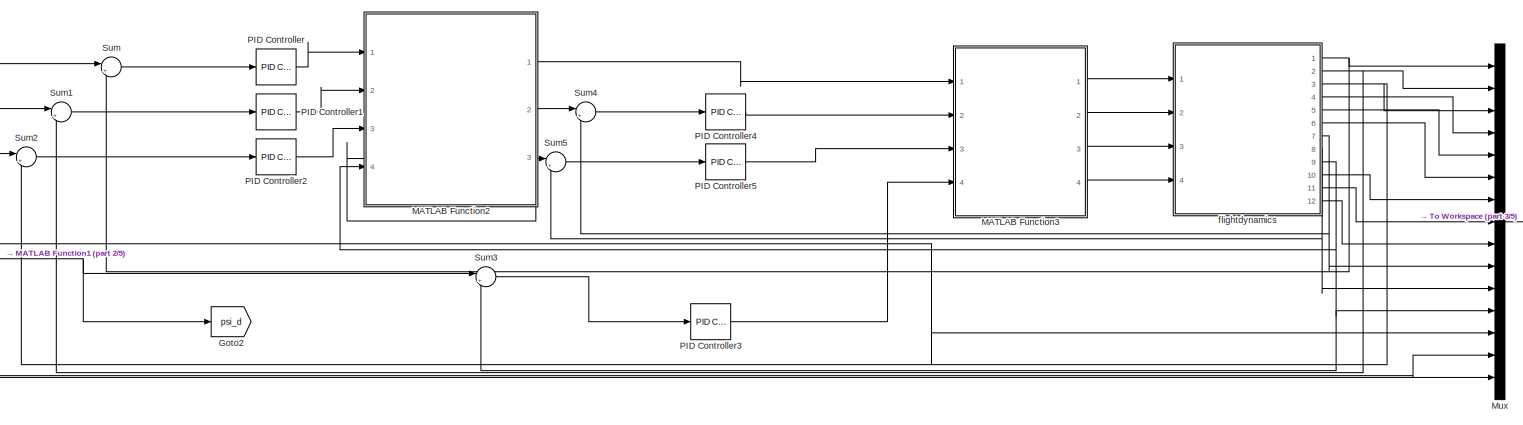
[diagram: root canvas - part 1/5, top center region]
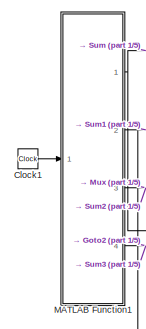
[diagram: root canvas - part 2/5, top left region]
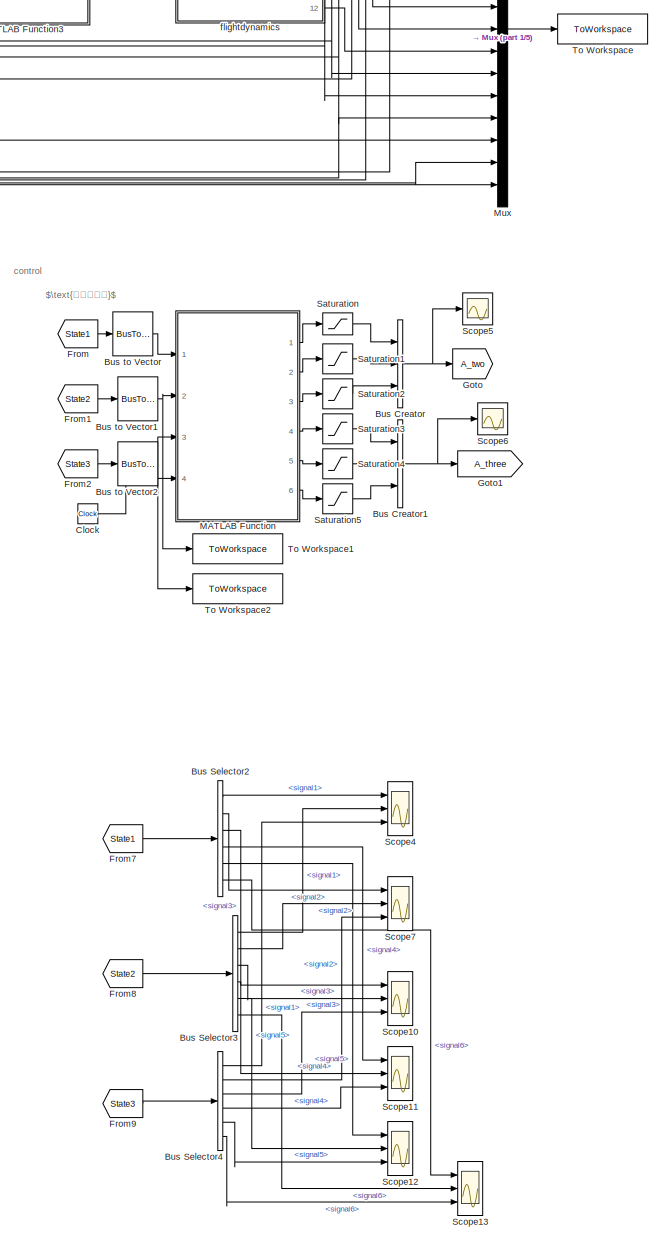
[diagram: root canvas - part 3/5, right side, full height]
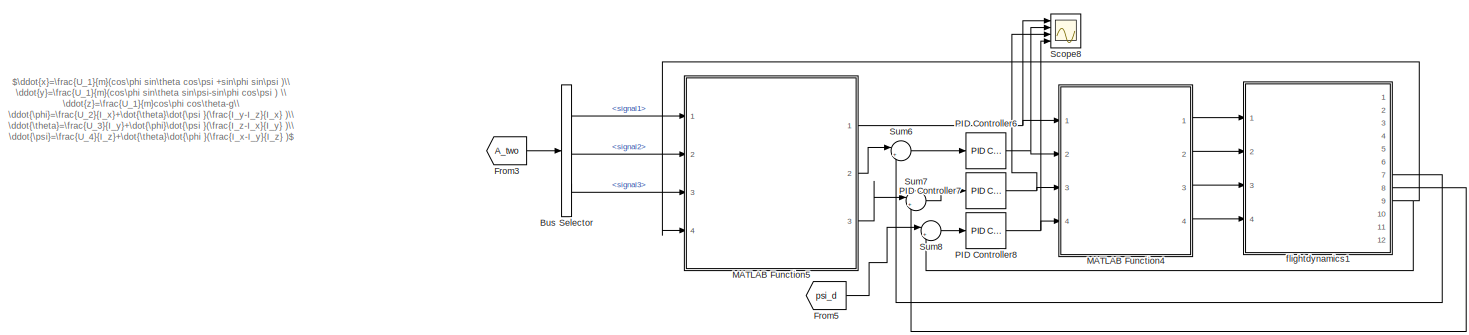
[diagram: root canvas - part 4/5, central region]
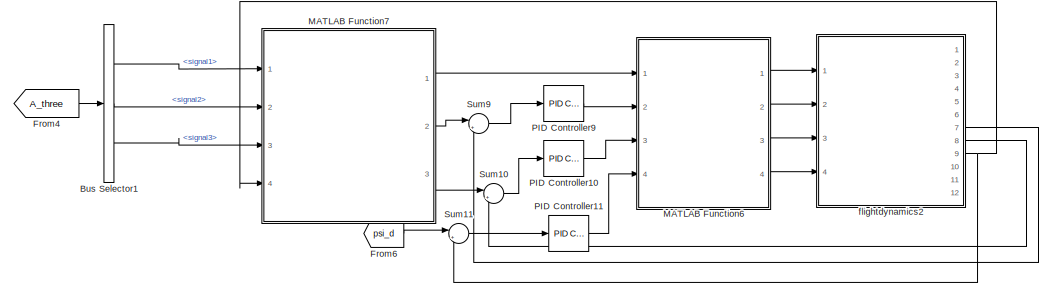
[diagram: root canvas - part 5/5, bottom center region]
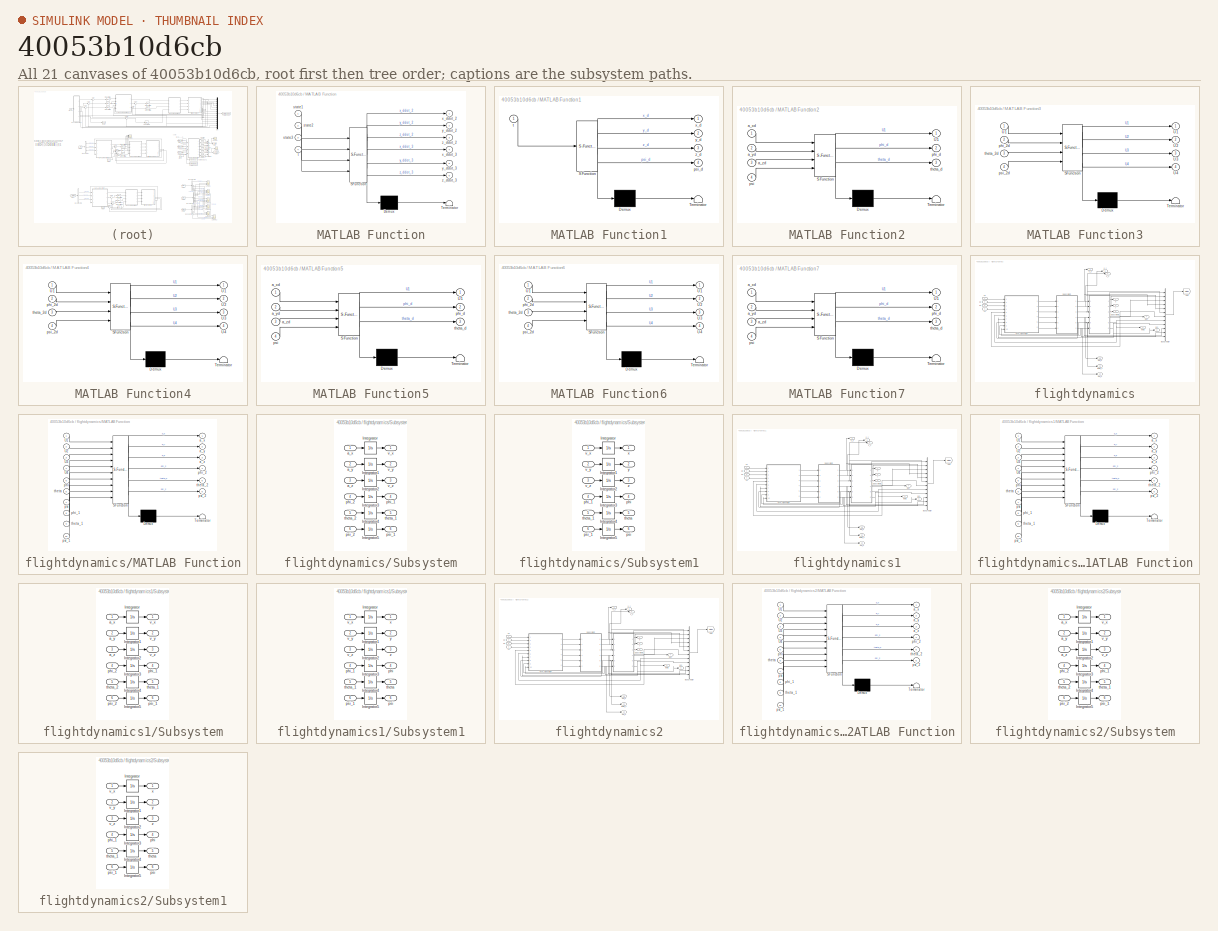
[diagram: thumbnail index - all 21 canvases of the model, root first then tree order]
MODEL slx_40053b10d6cb
KIND model
CONFIG AbsTol = auto
CONFIG EnableMultiTasking = off
CONFIG FixedStep = auto
CONFIG MaxStep = auto
CONFIG MinStep = auto
CONFIG RelTol = 1e-3
CONFIG SampleTimeConstraint = Unconstrained
CONFIG SolverName = VariableStepAuto
CONFIG StartTime = 0.0
CONFIG StopTime = 18
BLOCK [BusCreator] Bus Creator
  DisplayOption = bar
  InheritFromInputs = on
  Inputs = 3
  Ports = [3, 1]
BLOCK [BusCreator] Bus Creator1
  DisplayOption = bar
  InheritFromInputs = on
  Inputs = 3
  Ports = [3, 1]
BLOCK [BusSelector] Bus Selector
  OutputSignals = signal1,signal2,signal3
  Ports = [1, 3]
BLOCK [BusSelector] Bus Selector1
  OutputSignals = signal1,signal2,signal3
  Ports = [1, 3]
BLOCK [BusSelector] Bus Selector2
  OutputSignals = signal1,signal2,signal3,signal4,signal5,signal6
  Ports = [1, 6]
BLOCK [BusSelector] Bus Selector3
  OutputSignals = signal1,signal2,signal3,signal4,signal5,signal6
  Ports = [1, 6]
BLOCK [BusSelector] Bus Selector4
  OutputSignals = signal1,signal2,signal3,signal4,signal5,signal6
  Ports = [1, 6]
BLOCK [BusToVector] Bus to Vector
BLOCK [BusToVector] Bus to Vector1
BLOCK [BusToVector] Bus to Vector2
BLOCK [Clock] Clock
BLOCK [Clock] Clock1
BLOCK [From] From
  GotoTag = State1
  TagVisibility = global
BLOCK [From] From1
  GotoTag = State2
  TagVisibility = global
BLOCK [From] From2
  GotoTag = State3
  TagVisibility = global
BLOCK [From] From3
  GotoTag = A_two
BLOCK [From] From4
  GotoTag = A_three
BLOCK [From] From5
  GotoTag = psi_d
BLOCK [From] From6
  GotoTag = psi_d
BLOCK [From] From7
  GotoTag = State1
  TagVisibility = global
BLOCK [From] From8
  GotoTag = State2
  TagVisibility = global
BLOCK [From] From9
  GotoTag = State3
  TagVisibility = global
BLOCK [Goto] Goto
  GotoTag = A_two
  IconDisplay = Tag and signal name
BLOCK [Goto] Goto1
  GotoTag = A_three
BLOCK [Goto] Goto2
  GotoTag = psi_d
BLOCK [SubSystem] MATLAB Function
  ErrorFcn = Stateflow.Translate.translate
  PermitHierarchicalResolution = ExplicitOnly
  Ports = [4, 6]
  RequestExecContextInheritance = off
  SFBlockType = MATLAB Function
  TreatAsAtomicUnit = on
BLOCK [Demux] MATLAB Function/ Demux 
  Outputs = 1
  Ports = [1, 1]
BLOCK [S-Function] MATLAB Function/ SFunction 
  EnableBusSupport = on
  FunctionName = sf_sfun
  PortCounts = [4 7]
  Ports = [4, 7]
  SFcnIsStateOwnerBlock = off
  SFunctionDeploymentMode = off
  Tag = Stateflow S-Function 6
BLOCK [Terminator] MATLAB Function/ Terminator 
BLOCK [Inport] MATLAB Function/state1
BLOCK [Inport] MATLAB Function/state2
  Port = 2
BLOCK [Inport] MATLAB Function/state3
  Port = 3
BLOCK [Inport] MATLAB Function/t
  Port = 4
BLOCK [Outport] MATLAB Function/x_ddot_2
BLOCK [Outport] MATLAB Function/x_ddot_3
  Port = 4
BLOCK [Outport] MATLAB Function/y_ddot_2
  Port = 2
BLOCK [Outport] MATLAB Function/y_ddot_3
  Port = 5
BLOCK [Outport] MATLAB Function/z_ddot_2
  Port = 3
BLOCK [Outport] MATLAB Function/z_ddot_3
  Port = 6
BLOCK [SubSystem] MATLAB Function1
  ErrorFcn = Stateflow.Translate.translate
  PermitHierarchicalResolution = ExplicitOnly
  Ports = [1, 4]
  RequestExecContextInheritance = off
  SFBlockType = MATLAB Function
  TreatAsAtomicUnit = on
BLOCK [Demux] MATLAB Function1/ Demux 
  Outputs = 1
  Ports = [1, 1]
BLOCK [S-Function] MATLAB Function1/ SFunction 
  EnableBusSupport = on
  FunctionName = sf_sfun
  PortCounts = [1 5]
  Ports = [1, 5]
  SFcnIsStateOwnerBlock = off
  SFunctionDeploymentMode = off
  Tag = Stateflow S-Function 1
BLOCK [Terminator] MATLAB Function1/ Terminator 
BLOCK [Outport] MATLAB Function1/psi_d
  Port = 4
BLOCK [Inport] MATLAB Function1/t
BLOCK [Outport] MATLAB Function1/x_d
BLOCK [Outport] MATLAB Function1/y_d
  Port = 2
BLOCK [Outport] MATLAB Function1/z_d
  Port = 3
BLOCK [SubSystem] MATLAB Function2
  ErrorFcn = Stateflow.Translate.translate
  PermitHierarchicalResolution = ExplicitOnly
  Ports = [4, 3]
  RequestExecContextInheritance = off
  SFBlockType = MATLAB Function
  TreatAsAtomicUnit = on
BLOCK [Demux] MATLAB Function2/ Demux 
  Outputs = 1
  Ports = [1, 1]
BLOCK [S-Function] MATLAB Function2/ SFunction 
  EnableBusSupport = on
  FunctionName = sf_sfun
  PortCounts = [4 4]
  Ports = [4, 4]
  SFcnIsStateOwnerBlock = off
  SFunctionDeploymentMode = off
  Tag = Stateflow S-Function 4
BLOCK [Terminator] MATLAB Function2/ Terminator 
BLOCK [Outport] MATLAB Function2/U1
BLOCK [Inport] MATLAB Function2/a_xd
BLOCK [Inport] MATLAB Function2/a_yd
  Port = 2
BLOCK [Inport] MATLAB Function2/a_zd
  Port = 3
BLOCK [Outport] MATLAB Function2/phi_d
  Port = 2
BLOCK [Inport] MATLAB Function2/psi
  Port = 4
BLOCK [Outport] MATLAB Function2/theta_d
  Port = 3
BLOCK [SubSystem] MATLAB Function3
  ErrorFcn = Stateflow.Translate.translate
  PermitHierarchicalResolution = ExplicitOnly
  Ports = [4, 4]
  RequestExecContextInheritance = off
  SFBlockType = MATLAB Function
  TreatAsAtomicUnit = on
BLOCK [Demux] MATLAB Function3/ Demux 
  Outputs = 1
  Ports = [1, 1]
BLOCK [S-Function] MATLAB Function3/ SFunction 
  EnableBusSupport = on
  FunctionName = sf_sfun
  PortCounts = [4 5]
  Ports = [4, 5]
  SFcnIsStateOwnerBlock = off
  SFunctionDeploymentMode = off
  Tag = Stateflow S-Function 5
BLOCK [Terminator] MATLAB Function3/ Terminator 
BLOCK [Outport] MATLAB Function3/U1
BLOCK [Inport] MATLAB Function3/U1 
BLOCK [Outport] MATLAB Function3/U2
  Port = 2
BLOCK [Outport] MATLAB Function3/U3
  Port = 3
BLOCK [Outport] MATLAB Function3/U4
  Port = 4
BLOCK [Inport] MATLAB Function3/phi_2d
  Port = 2
BLOCK [Inport] MATLAB Function3/psi_2d
  Port = 4
BLOCK [Inport] MATLAB Function3/theta_2d
  Port = 3
BLOCK [SubSystem] MATLAB Function4
  ErrorFcn = Stateflow.Translate.translate
  PermitHierarchicalResolution = ExplicitOnly
  Ports = [4, 4]
  RequestExecContextInheritance = off
  SFBlockType = MATLAB Function
  TreatAsAtomicUnit = on
BLOCK [Demux] MATLAB Function4/ Demux 
  Outputs = 1
  Ports = [1, 1]
BLOCK [S-Function] MATLAB Function4/ SFunction 
  EnableBusSupport = on
  FunctionName = sf_sfun
  PortCounts = [4 5]
  Ports = [4, 5]
  SFcnIsStateOwnerBlock = off
  SFunctionDeploymentMode = off
  Tag = Stateflow S-Function 8
BLOCK [Terminator] MATLAB Function4/ Terminator 
BLOCK [Outport] MATLAB Function4/U1
BLOCK [Inport] MATLAB Function4/U1 
BLOCK [Outport] MATLAB Function4/U2
  Port = 2
BLOCK [Outport] MATLAB Function4/U3
  Port = 3
BLOCK [Outport] MATLAB Function4/U4
  Port = 4
BLOCK [Inport] MATLAB Function4/phi_2d
  Port = 2
BLOCK [Inport] MATLAB Function4/psi_2d
  Port = 4
BLOCK [Inport] MATLAB Function4/theta_2d
  Port = 3
BLOCK [SubSystem] MATLAB Function5
  ErrorFcn = Stateflow.Translate.translate
  PermitHierarchicalResolution = ExplicitOnly
  Ports = [4, 3]
  RequestExecContextInheritance = off
  SFBlockType = MATLAB Function
  TreatAsAtomicUnit = on
BLOCK [Demux] MATLAB Function5/ Demux 
  Outputs = 1
  Ports = [1, 1]
BLOCK [S-Function] MATLAB Function5/ SFunction 
  EnableBusSupport = on
  FunctionName = sf_sfun
  PortCounts = [4 4]
  Ports = [4, 4]
  SFcnIsStateOwnerBlock = off
  SFunctionDeploymentMode = off
  Tag = Stateflow S-Function 9
BLOCK [Terminator] MATLAB Function5/ Terminator 
BLOCK [Outport] MATLAB Function5/U1
BLOCK [Inport] MATLAB Function5/a_xd
BLOCK [Inport] MATLAB Function5/a_yd
  Port = 2
BLOCK [Inport] MATLAB Function5/a_zd
  Port = 3
BLOCK [Outport] MATLAB Function5/phi_d
  Port = 2
BLOCK [Inport] MATLAB Function5/psi
  Port = 4
BLOCK [Outport] MATLAB Function5/theta_d
  Port = 3
BLOCK [SubSystem] MATLAB Function6
  ErrorFcn = Stateflow.Translate.translate
  PermitHierarchicalResolution = ExplicitOnly
  Ports = [4, 4]
  RequestExecContextInheritance = off
  SFBlockType = MATLAB Function
  TreatAsAtomicUnit = on
BLOCK [Demux] MATLAB Function6/ Demux 
  Outputs = 1
  Ports = [1, 1]
BLOCK [S-Function] MATLAB Function6/ SFunction 
  EnableBusSupport = on
  FunctionName = sf_sfun
  PortCounts = [4 5]
  Ports = [4, 5]
  SFcnIsStateOwnerBlock = off
  SFunctionDeploymentMode = off
  Tag = Stateflow S-Function 10
BLOCK [Terminator] MATLAB Function6/ Terminator 
BLOCK [Outport] MATLAB Function6/U1
BLOCK [Inport] MATLAB Function6/U1 
BLOCK [Outport] MATLAB Function6/U2
  Port = 2
BLOCK [Outport] MATLAB Function6/U3
  Port = 3
BLOCK [Outport] MATLAB Function6/U4
  Port = 4
BLOCK [Inport] MATLAB Function6/phi_2d
  Port = 2
BLOCK [Inport] MATLAB Function6/psi_2d
  Port = 4
BLOCK [Inport] MATLAB Function6/theta_2d
  Port = 3
BLOCK [SubSystem] MATLAB Function7
  ErrorFcn = Stateflow.Translate.translate
  PermitHierarchicalResolution = ExplicitOnly
  Ports = [4, 3]
  RequestExecContextInheritance = off
  SFBlockType = MATLAB Function
  TreatAsAtomicUnit = on
BLOCK [Demux] MATLAB Function7/ Demux 
  Outputs = 1
  Ports = [1, 1]
BLOCK [S-Function] MATLAB Function7/ SFunction 
  EnableBusSupport = on
  FunctionName = sf_sfun
  PortCounts = [4 4]
  Ports = [4, 4]
  SFcnIsStateOwnerBlock = off
  SFunctionDeploymentMode = off
  Tag = Stateflow S-Function 11
BLOCK [Terminator] MATLAB Function7/ Terminator 
BLOCK [Outport] MATLAB Function7/U1
BLOCK [Inport] MATLAB Function7/a_xd
BLOCK [Inport] MATLAB Function7/a_yd
  Port = 2
BLOCK [Inport] MATLAB Function7/a_zd
  Port = 3
BLOCK [Outport] MATLAB Function7/phi_d
  Port = 2
BLOCK [Inport] MATLAB Function7/psi
  Port = 4
BLOCK [Outport] MATLAB Function7/theta_d
  Port = 3
BLOCK [Mux] Mux
  DisplayOption = bar
  Inputs = 15
  Ports = [15, 1]
BLOCK [Reference] PID Controller  REF=slpidlib/PID Controller
  Ports = [1, 1]
  SourceBlock = slpidlib/PID Controller
  SourceProductBaseCode = SL
  SourceType = PID 1dof
BLOCK [Reference] PID Controller1  REF=slpidlib/PID Controller
  Ports = [1, 1]
  SourceBlock = slpidlib/PID Controller
  SourceProductBaseCode = SL
  SourceType = PID 1dof
BLOCK [Reference] PID Controller10  REF=slpidlib/PID Controller
  Ports = [1, 1]
  SourceBlock = slpidlib/PID Controller
  SourceProductBaseCode = SL
  SourceType = PID 1dof
BLOCK [Reference] PID Controller11  REF=slpidlib/PID Controller
  Ports = [1, 1]
  SourceBlock = slpidlib/PID Controller
  SourceProductBaseCode = SL
  SourceType = PID 1dof
BLOCK [Reference] PID Controller2  REF=slpidlib/PID Controller
  Ports = [1, 1]
  SourceBlock = slpidlib/PID Controller
  SourceProductBaseCode = SL
  SourceType = PID 1dof
BLOCK [Reference] PID Controller3  REF=slpidlib/PID Controller
  Ports = [1, 1]
  SourceBlock = slpidlib/PID Controller
  SourceProductBaseCode = SL
  SourceType = PID 1dof
BLOCK [Reference] PID Controller4  REF=slpidlib/PID Controller
  Ports = [1, 1]
  SourceBlock = slpidlib/PID Controller
  SourceProductBaseCode = SL
  SourceType = PID 1dof
BLOCK [Reference] PID Controller5  REF=slpidlib/PID Controller
  Ports = [1, 1]
  SourceBlock = slpidlib/PID Controller
  SourceProductBaseCode = SL
  SourceType = PID 1dof
BLOCK [Reference] PID Controller6  REF=slpidlib/PID Controller
  Ports = [1, 1]
  SourceBlock = slpidlib/PID Controller
  SourceProductBaseCode = SL
  SourceType = PID 1dof
BLOCK [Reference] PID Controller7  REF=slpidlib/PID Controller
  Ports = [1, 1]
  SourceBlock = slpidlib/PID Controller
  SourceProductBaseCode = SL
  SourceType = PID 1dof
BLOCK [Reference] PID Controller8  REF=slpidlib/PID Controller
  Ports = [1, 1]
  SourceBlock = slpidlib/PID Controller
  SourceProductBaseCode = SL
  SourceType = PID 1dof
BLOCK [Reference] PID Controller9  REF=slpidlib/PID Controller
  Ports = [1, 1]
  SourceBlock = slpidlib/PID Controller
  SourceProductBaseCode = SL
  SourceType = PID 1dof
BLOCK [Saturate] Saturation
  LowerLimit = -10
  UpperLimit = 10
BLOCK [Saturate] Saturation1
  LowerLimit = -10
  UpperLimit = 10
BLOCK [Saturate] Saturation2
  LowerLimit = -10
  UpperLimit = 10
BLOCK [Saturate] Saturation3
  LowerLimit = -10
  UpperLimit = 10
BLOCK [Saturate] Saturation4
  LowerLimit = -10
  UpperLimit = 10
BLOCK [Saturate] Saturation5
  LowerLimit = -10
  UpperLimit = 10
BLOCK [Scope] Scope10
  Floating = off
  NumInputPorts = 3
  Ports = [3]
  ScopeSpecificationString = Simulink.scopes.TimeScopeBlockCfg('CurrentConfiguration', extmgr.ConfigurationSet(extmgr.Configuration('Core','General UI',true),extmgr.Configuration('Core','Source UI',true),extmgr.Configuration('Sources','WiredSimulink',true,'DataLoggingVariableName','ScopeData5'),extmgr.Configuration('Visuals','Time Domain',true,'SerializedDisplays',{struct('MinYLimReal','-1.06359','MaxYLimReal','9.5723','YLabe...<+1437ch>
BLOCK [Scope] Scope11
  Floating = off
  NumInputPorts = 3
  Ports = [3]
  ScopeSpecificationString = Simulink.scopes.TimeScopeBlockCfg('CurrentConfiguration', extmgr.ConfigurationSet(extmgr.Configuration('Core','General UI',true),extmgr.Configuration('Core','Source UI',true),extmgr.Configuration('Sources','WiredSimulink',true,'DataLoggingVariableName','ScopeData6'),extmgr.Configuration('Visuals','Time Domain',true,'SerializedDisplays',{struct('MinYLimReal','-0.24436','MaxYLimReal','2.19923','YLab...<+1392ch>
BLOCK [Scope] Scope12
  Floating = off
  NumInputPorts = 3
  Ports = [3]
  ScopeSpecificationString = Simulink.scopes.TimeScopeBlockCfg('CurrentConfiguration', extmgr.ConfigurationSet(extmgr.Configuration('Core','General UI',true),extmgr.Configuration('Core','Source UI',true),extmgr.Configuration('Sources','WiredSimulink',true,'DataLoggingVariableName','ScopeData7'),extmgr.Configuration('Visuals','Time Domain',true,'SerializedDisplays',{struct('MinYLimReal','-3.35896','MaxYLimReal','3.33397','YLab...<+1392ch>
BLOCK [Scope] Scope13
  Floating = off
  NumInputPorts = 3
  Ports = [3]
  ScopeSpecificationString = Simulink.scopes.TimeScopeBlockCfg('CurrentConfiguration', extmgr.ConfigurationSet(extmgr.Configuration('Core','General UI',true),extmgr.Configuration('Core','Source UI',true),extmgr.Configuration('Sources','WiredSimulink',true,'DataLoggingVariableName','ScopeData8'),extmgr.Configuration('Visuals','Time Domain',true,'SerializedDisplays',{struct('MinYLimReal','-1.00257','MaxYLimReal','5.23829','YLab...<+1458ch>
BLOCK [Scope] Scope4
  Floating = off
  NumInputPorts = 3
  Ports = [3]
  ScopeSpecificationString = Simulink.scopes.TimeScopeBlockCfg('CurrentConfiguration', extmgr.ConfigurationSet(extmgr.Configuration('Core','General UI',true),extmgr.Configuration('Core','Source UI',true),extmgr.Configuration('Sources','WiredSimulink',true,'DataLoggingVariableName','ScopeData3'),extmgr.Configuration('Visuals','Time Domain',true,'SerializedDisplays',{struct('MinYLimReal','-6.67873','MaxYLimReal','1.39275','YLab...<+1425ch>
BLOCK [Scope] Scope5
  Floating = off
  NumInputPorts = 1
  Ports = [1]
  ScopeSpecificationString = Simulink.scopes.TimeScopeBlockCfg('CurrentConfiguration', extmgr.ConfigurationSet(extmgr.Configuration('Core','General UI',true),extmgr.Configuration('Core','Source UI',true),extmgr.Configuration('Sources','WiredSimulink',true,'DataLoggingVariableName','ScopeData2'),extmgr.Configuration('Visuals','Time Domain',true,'SerializedDisplays',{struct('MinYLimReal','-5.75','MaxYLimReal','11.75','YLabelRea...<+1414ch>
BLOCK [Scope] Scope6
  Floating = off
  NumInputPorts = 1
  Ports = [1]
  ScopeSpecificationString = Simulink.scopes.TimeScopeBlockCfg('CurrentConfiguration', extmgr.ConfigurationSet(extmgr.Configuration('Core','General UI',true),extmgr.Configuration('Core','Source UI',true),extmgr.Configuration('Sources','WiredSimulink',true,'DataLoggingVariableName','ScopeData3'),extmgr.Configuration('Visuals','Time Domain',true,'SerializedDisplays',{struct('MinYLimReal','-12.36582','MaxYLimReal','11.29241','YL...<+1435ch>
BLOCK [Scope] Scope7
  Floating = off
  NumInputPorts = 3
  Ports = [3]
  ScopeSpecificationString = Simulink.scopes.TimeScopeBlockCfg('CurrentConfiguration', extmgr.ConfigurationSet(extmgr.Configuration('Core','General UI',true),extmgr.Configuration('Core','Source UI',true),extmgr.Configuration('Sources','WiredSimulink',true,'DataLoggingVariableName','ScopeData4'),extmgr.Configuration('Visuals','Time Domain',true,'SerializedDisplays',{struct('MinYLimReal','-5.9342','MaxYLimReal','6.27376','YLabe...<+1424ch>
BLOCK [Scope] Scope8
  Floating = off
  NumInputPorts = 4
  Ports = [4]
  ScopeSpecificationString = Simulink.scopes.TimeScopeBlockCfg('CurrentConfiguration', extmgr.ConfigurationSet(extmgr.Configuration('Core','General UI',true),extmgr.Configuration('Core','Source UI',true),extmgr.Configuration('Sources','WiredSimulink',true,'DataLoggingVariableName','ScopeData1'),extmgr.Configuration('Visuals','Time Domain',true,'SerializedDisplays',{struct('MinYLimReal','-364.17329','MaxYLimReal','1726.53918',...<+1634ch>
BLOCK [Sum] Sum
  Inputs = |+-
  Ports = [2, 1]
BLOCK [Sum] Sum1
  Inputs = |+-
  Ports = [2, 1]
BLOCK [Sum] Sum10
  Inputs = |+-
  Ports = [2, 1]
BLOCK [Sum] Sum11
  Inputs = |+-
  Ports = [2, 1]
BLOCK [Sum] Sum2
  Inputs = |+-
  Ports = [2, 1]
BLOCK [Sum] Sum3
  Inputs = |+-
  Ports = [2, 1]
BLOCK [Sum] Sum4
  Inputs = |+-
  Ports = [2, 1]
BLOCK [Sum] Sum5
  Inputs = |+-
  Ports = [2, 1]
BLOCK [Sum] Sum6
  Inputs = |+-
  Ports = [2, 1]
BLOCK [Sum] Sum7
  Inputs = |+-
  Ports = [2, 1]
BLOCK [Sum] Sum8
  Inputs = |+-
  Ports = [2, 1]
BLOCK [Sum] Sum9
  Inputs = |+-
  Ports = [2, 1]
BLOCK [ToWorkspace] To Workspace
  FixptAsFi = on
  MaxDataPoints = inf
  Ports = [1]
  SampleTime = -1
  SaveFormat = Structure With Time
  VariableName = simout
BLOCK [ToWorkspace] To Workspace1
  FixptAsFi = on
  MaxDataPoints = inf
  Ports = [1]
  SampleTime = -1
  SaveFormat = Structure With Time
  VariableName = simout1
BLOCK [ToWorkspace] To Workspace2
  FixptAsFi = on
  MaxDataPoints = inf
  Ports = [1]
  SampleTime = -1
  SaveFormat = Structure With Time
  VariableName = simout2
BLOCK [SubSystem] flightdynamics
  Ports = [4, 12]
  RequestExecContextInheritance = off
BLOCK [BusCreator] flightdynamics/Bus Creator
  DisplayOption = bar
  InheritFromInputs = on
  Inputs = 12
  Ports = [12, 1]
BLOCK [Goto] flightdynamics/Goto
  GotoTag = State1
  TagVisibility = global
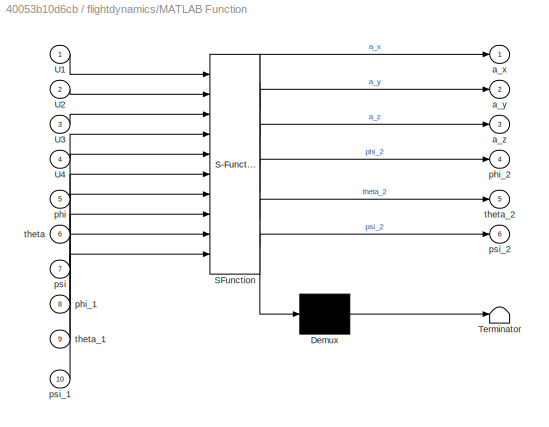
BLOCK [SubSystem] flightdynamics/MATLAB Function
  ErrorFcn = Stateflow.Translate.translate
  PermitHierarchicalResolution = ExplicitOnly
  Ports = [10, 6]
  RequestExecContextInheritance = off
  SFBlockType = MATLAB Function
  TreatAsAtomicUnit = on
BLOCK [Demux] flightdynamics/MATLAB Function/ Demux 
  Outputs = 1
  Ports = [1, 1]
BLOCK [S-Function] flightdynamics/MATLAB Function/ SFunction 
  EnableBusSupport = on
  FunctionName = sf_sfun
  PortCounts = [10 7]
  Ports = [10, 7]
  SFcnIsStateOwnerBlock = off
  SFunctionDeploymentMode = off
  Tag = Stateflow S-Function 2
BLOCK [Terminator] flightdynamics/MATLAB Function/ Terminator 
BLOCK [Inport] flightdynamics/MATLAB Function/U1
BLOCK [Inport] flightdynamics/MATLAB Function/U2
  Port = 2
BLOCK [Inport] flightdynamics/MATLAB Function/U3
  Port = 3
BLOCK [Inport] flightdynamics/MATLAB Function/U4
  Port = 4
BLOCK [Outport] flightdynamics/MATLAB Function/a_x
BLOCK [Outport] flightdynamics/MATLAB Function/a_y
  Port = 2
BLOCK [Outport] flightdynamics/MATLAB Function/a_z
  Port = 3
BLOCK [Inport] flightdynamics/MATLAB Function/phi
  Port = 5
BLOCK [Inport] flightdynamics/MATLAB Function/phi_1
  Port = 8
BLOCK [Outport] flightdynamics/MATLAB Function/phi_2
  Port = 4
BLOCK [Inport] flightdynamics/MATLAB Function/psi
  Port = 7
BLOCK [Inport] flightdynamics/MATLAB Function/psi_1
  Port = 10
BLOCK [Outport] flightdynamics/MATLAB Function/psi_2
  Port = 6
BLOCK [Inport] flightdynamics/MATLAB Function/theta
  Port = 6
BLOCK [Inport] flightdynamics/MATLAB Function/theta_1
  Port = 9
BLOCK [Outport] flightdynamics/MATLAB Function/theta_2
  Port = 5
BLOCK [SubSystem] flightdynamics/Subsystem
  Ports = [6, 6]
  RequestExecContextInheritance = off
BLOCK [Integrator] flightdynamics/Subsystem/Integrator
  Ports = [1, 1]
BLOCK [Integrator] flightdynamics/Subsystem/Integrator1
  Ports = [1, 1]
BLOCK [Integrator] flightdynamics/Subsystem/Integrator2
  Ports = [1, 1]
BLOCK [Integrator] flightdynamics/Subsystem/Integrator3
  Ports = [1, 1]
BLOCK [Integrator] flightdynamics/Subsystem/Integrator4
  Ports = [1, 1]
BLOCK [Integrator] flightdynamics/Subsystem/Integrator5
  Ports = [1, 1]
BLOCK [Inport] flightdynamics/Subsystem/a_x
BLOCK [Inport] flightdynamics/Subsystem/a_y
  Port = 2
BLOCK [Inport] flightdynamics/Subsystem/a_z
  Port = 3
BLOCK [Outport] flightdynamics/Subsystem/phi_1
  Port = 4
BLOCK [Inport] flightdynamics/Subsystem/phi_2
  Port = 4
BLOCK [Outport] flightdynamics/Subsystem/psi_1
  Port = 6
BLOCK [Inport] flightdynamics/Subsystem/psi_2
  Port = 6
BLOCK [Outport] flightdynamics/Subsystem/theta_1
  Port = 5
BLOCK [Inport] flightdynamics/Subsystem/theta_2
  Port = 5
BLOCK [Outport] flightdynamics/Subsystem/v_x
BLOCK [Outport] flightdynamics/Subsystem/v_y
  Port = 2
BLOCK [Outport] flightdynamics/Subsystem/v_z
  Port = 3
BLOCK [SubSystem] flightdynamics/Subsystem1
  Ports = [6, 6]
  RequestExecContextInheritance = off
BLOCK [Integrator] flightdynamics/Subsystem1/Integrator
  Ports = [1, 1]
BLOCK [Integrator] flightdynamics/Subsystem1/Integrator1
  Ports = [1, 1]
BLOCK [Integrator] flightdynamics/Subsystem1/Integrator2
  InitialCondition = 0.3
  Ports = [1, 1]
BLOCK [Integrator] flightdynamics/Subsystem1/Integrator3
  Ports = [1, 1]
BLOCK [Integrator] flightdynamics/Subsystem1/Integrator4
  Ports = [1, 1]
BLOCK [Integrator] flightdynamics/Subsystem1/Integrator5
  Ports = [1, 1]
BLOCK [Outport] flightdynamics/Subsystem1/phi
  Port = 4
BLOCK [Inport] flightdynamics/Subsystem1/phi_1
  Port = 4
BLOCK [Outport] flightdynamics/Subsystem1/psi
  Port = 6
BLOCK [Inport] flightdynamics/Subsystem1/psi_1
  Port = 6
BLOCK [Outport] flightdynamics/Subsystem1/theta
  Port = 5
BLOCK [Inport] flightdynamics/Subsystem1/theta_1
  Port = 5
BLOCK [Inport] flightdynamics/Subsystem1/v_x
BLOCK [Inport] flightdynamics/Subsystem1/v_y
  Port = 2
BLOCK [Inport] flightdynamics/Subsystem1/v_z
  Port = 3
BLOCK [Outport] flightdynamics/Subsystem1/x
BLOCK [Outport] flightdynamics/Subsystem1/y
  Port = 2
BLOCK [Outport] flightdynamics/Subsystem1/z
  Port = 3
BLOCK [Outport] flightdynamics/phi
  Port = 7
BLOCK [Outport] flightdynamics/phi_1
  Port = 10
BLOCK [Outport] flightdynamics/psi
  Port = 9
BLOCK [Outport] flightdynamics/psi_1
  Port = 12
BLOCK [Outport] flightdynamics/theta
  Port = 8
BLOCK [Outport] flightdynamics/theta_1
  Port = 11
BLOCK [Inport] flightdynamics/u1
BLOCK [Inport] flightdynamics/u2
  Port = 2
BLOCK [Inport] flightdynamics/u3
  Port = 3
BLOCK [Inport] flightdynamics/u4
  Port = 4
BLOCK [Outport] flightdynamics/v_x
  Port = 4
BLOCK [Outport] flightdynamics/v_y
  Port = 5
BLOCK [Outport] flightdynamics/v_z
  Port = 6
BLOCK [Outport] flightdynamics/x
BLOCK [Outport] flightdynamics/y
  Port = 2
BLOCK [Outport] flightdynamics/z
  Port = 3
BLOCK [SubSystem] flightdynamics1
  Ports = [4, 12]
  RequestExecContextInheritance = off
BLOCK [BusCreator] flightdynamics1/Bus Creator
  DisplayOption = bar
  InheritFromInputs = on
  Inputs = 12
  Ports = [12, 1]
BLOCK [Goto] flightdynamics1/Goto
  GotoTag = State2
  TagVisibility = global
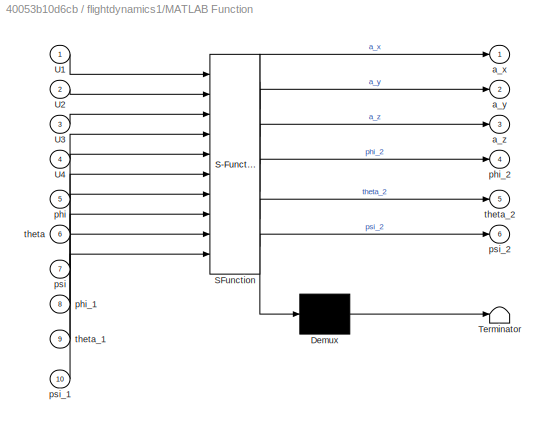
BLOCK [SubSystem] flightdynamics1/MATLAB Function
  ErrorFcn = Stateflow.Translate.translate
  PermitHierarchicalResolution = ExplicitOnly
  Ports = [10, 6]
  RequestExecContextInheritance = off
  SFBlockType = MATLAB Function
  TreatAsAtomicUnit = on
BLOCK [Demux] flightdynamics1/MATLAB Function/ Demux 
  Outputs = 1
  Ports = [1, 1]
BLOCK [S-Function] flightdynamics1/MATLAB Function/ SFunction 
  EnableBusSupport = on
  FunctionName = sf_sfun
  PortCounts = [10 7]
  Ports = [10, 7]
  SFcnIsStateOwnerBlock = off
  SFunctionDeploymentMode = off
  Tag = Stateflow S-Function 3
BLOCK [Terminator] flightdynamics1/MATLAB Function/ Terminator 
BLOCK [Inport] flightdynamics1/MATLAB Function/U1
BLOCK [Inport] flightdynamics1/MATLAB Function/U2
  Port = 2
BLOCK [Inport] flightdynamics1/MATLAB Function/U3
  Port = 3
BLOCK [Inport] flightdynamics1/MATLAB Function/U4
  Port = 4
BLOCK [Outport] flightdynamics1/MATLAB Function/a_x
BLOCK [Outport] flightdynamics1/MATLAB Function/a_y
  Port = 2
BLOCK [Outport] flightdynamics1/MATLAB Function/a_z
  Port = 3
BLOCK [Inport] flightdynamics1/MATLAB Function/phi
  Port = 5
BLOCK [Inport] flightdynamics1/MATLAB Function/phi_1
  Port = 8
BLOCK [Outport] flightdynamics1/MATLAB Function/phi_2
  Port = 4
BLOCK [Inport] flightdynamics1/MATLAB Function/psi
  Port = 7
BLOCK [Inport] flightdynamics1/MATLAB Function/psi_1
  Port = 10
BLOCK [Outport] flightdynamics1/MATLAB Function/psi_2
  Port = 6
BLOCK [Inport] flightdynamics1/MATLAB Function/theta
  Port = 6
BLOCK [Inport] flightdynamics1/MATLAB Function/theta_1
  Port = 9
BLOCK [Outport] flightdynamics1/MATLAB Function/theta_2
  Port = 5
BLOCK [SubSystem] flightdynamics1/Subsystem
  Ports = [6, 6]
  RequestExecContextInheritance = off
BLOCK [Integrator] flightdynamics1/Subsystem/Integrator
  Ports = [1, 1]
BLOCK [Integrator] flightdynamics1/Subsystem/Integrator1
  Ports = [1, 1]
BLOCK [Integrator] flightdynamics1/Subsystem/Integrator2
  Ports = [1, 1]
BLOCK [Integrator] flightdynamics1/Subsystem/Integrator3
  Ports = [1, 1]
BLOCK [Integrator] flightdynamics1/Subsystem/Integrator4
  Ports = [1, 1]
BLOCK [Integrator] flightdynamics1/Subsystem/Integrator5
  Ports = [1, 1]
BLOCK [Inport] flightdynamics1/Subsystem/a_x
BLOCK [Inport] flightdynamics1/Subsystem/a_y
  Port = 2
BLOCK [Inport] flightdynamics1/Subsystem/a_z
  Port = 3
BLOCK [Outport] flightdynamics1/Subsystem/phi_1
  Port = 4
BLOCK [Inport] flightdynamics1/Subsystem/phi_2
  Port = 4
BLOCK [Outport] flightdynamics1/Subsystem/psi_1
  Port = 6
BLOCK [Inport] flightdynamics1/Subsystem/psi_2
  Port = 6
BLOCK [Outport] flightdynamics1/Subsystem/theta_1
  Port = 5
BLOCK [Inport] flightdynamics1/Subsystem/theta_2
  Port = 5
BLOCK [Outport] flightdynamics1/Subsystem/v_x
BLOCK [Outport] flightdynamics1/Subsystem/v_y
  Port = 2
BLOCK [Outport] flightdynamics1/Subsystem/v_z
  Port = 3
BLOCK [SubSystem] flightdynamics1/Subsystem1
  Ports = [6, 6]
  RequestExecContextInheritance = off
BLOCK [Integrator] flightdynamics1/Subsystem1/Integrator
  InitialCondition = -1
  Ports = [1, 1]
BLOCK [Integrator] flightdynamics1/Subsystem1/Integrator1
  InitialCondition = -1
  Ports = [1, 1]
BLOCK [Integrator] flightdynamics1/Subsystem1/Integrator2
  Ports = [1, 1]
BLOCK [Integrator] flightdynamics1/Subsystem1/Integrator3
  Ports = [1, 1]
BLOCK [Integrator] flightdynamics1/Subsystem1/Integrator4
  Ports = [1, 1]
BLOCK [Integrator] flightdynamics1/Subsystem1/Integrator5
  Ports = [1, 1]
BLOCK [Outport] flightdynamics1/Subsystem1/phi
  Port = 4
BLOCK [Inport] flightdynamics1/Subsystem1/phi_1
  Port = 4
BLOCK [Outport] flightdynamics1/Subsystem1/psi
  Port = 6
BLOCK [Inport] flightdynamics1/Subsystem1/psi_1
  Port = 6
BLOCK [Outport] flightdynamics1/Subsystem1/theta
  Port = 5
BLOCK [Inport] flightdynamics1/Subsystem1/theta_1
  Port = 5
BLOCK [Inport] flightdynamics1/Subsystem1/v_x
BLOCK [Inport] flightdynamics1/Subsystem1/v_y
  Port = 2
BLOCK [Inport] flightdynamics1/Subsystem1/v_z
  Port = 3
BLOCK [Outport] flightdynamics1/Subsystem1/x
BLOCK [Outport] flightdynamics1/Subsystem1/y
  Port = 2
BLOCK [Outport] flightdynamics1/Subsystem1/z
  Port = 3
BLOCK [Outport] flightdynamics1/phi
  Port = 7
BLOCK [Outport] flightdynamics1/phi_1
  Port = 10
BLOCK [Outport] flightdynamics1/psi
  Port = 9
BLOCK [Outport] flightdynamics1/psi_1
  Port = 12
BLOCK [Outport] flightdynamics1/theta
  Port = 8
BLOCK [Outport] flightdynamics1/theta_1
  Port = 11
BLOCK [Inport] flightdynamics1/u1
BLOCK [Inport] flightdynamics1/u2
  Port = 2
BLOCK [Inport] flightdynamics1/u3
  Port = 3
BLOCK [Inport] flightdynamics1/u4
  Port = 4
BLOCK [Outport] flightdynamics1/v_x
  Port = 4
BLOCK [Outport] flightdynamics1/v_y
  Port = 5
BLOCK [Outport] flightdynamics1/v_z
  Port = 6
BLOCK [Outport] flightdynamics1/x
BLOCK [Outport] flightdynamics1/y
  Port = 2
BLOCK [Outport] flightdynamics1/z
  Port = 3
BLOCK [SubSystem] flightdynamics2
  Ports = [4, 12]
  RequestExecContextInheritance = off
BLOCK [BusCreator] flightdynamics2/Bus Creator
  DisplayOption = bar
  InheritFromInputs = on
  Inputs = 12
  Ports = [12, 1]
BLOCK [Goto] flightdynamics2/Goto
  GotoTag = State3
  TagVisibility = global
BLOCK [SubSystem] flightdynamics2/MATLAB Function
  ErrorFcn = Stateflow.Translate.translate
  PermitHierarchicalResolution = ExplicitOnly
  Ports = [10, 6]
  RequestExecContextInheritance = off
  SFBlockType = MATLAB Function
  TreatAsAtomicUnit = on
BLOCK [Demux] flightdynamics2/MATLAB Function/ Demux 
  Outputs = 1
  Ports = [1, 1]
BLOCK [S-Function] flightdynamics2/MATLAB Function/ SFunction 
  EnableBusSupport = on
  FunctionName = sf_sfun
  PortCounts = [10 7]
  Ports = [10, 7]
  SFcnIsStateOwnerBlock = off
  SFunctionDeploymentMode = off
  Tag = Stateflow S-Function 7
BLOCK [Terminator] flightdynamics2/MATLAB Function/ Terminator 
BLOCK [Inport] flightdynamics2/MATLAB Function/U1
BLOCK [Inport] flightdynamics2/MATLAB Function/U2
  Port = 2
BLOCK [Inport] flightdynamics2/MATLAB Function/U3
  Port = 3
BLOCK [Inport] flightdynamics2/MATLAB Function/U4
  Port = 4
BLOCK [Outport] flightdynamics2/MATLAB Function/a_x
BLOCK [Outport] flightdynamics2/MATLAB Function/a_y
  Port = 2
BLOCK [Outport] flightdynamics2/MATLAB Function/a_z
  Port = 3
BLOCK [Inport] flightdynamics2/MATLAB Function/phi
  Port = 5
BLOCK [Inport] flightdynamics2/MATLAB Function/phi_1
  Port = 8
BLOCK [Outport] flightdynamics2/MATLAB Function/phi_2
  Port = 4
BLOCK [Inport] flightdynamics2/MATLAB Function/psi
  Port = 7
BLOCK [Inport] flightdynamics2/MATLAB Function/psi_1
  Port = 10
BLOCK [Outport] flightdynamics2/MATLAB Function/psi_2
  Port = 6
BLOCK [Inport] flightdynamics2/MATLAB Function/theta
  Port = 6
BLOCK [Inport] flightdynamics2/MATLAB Function/theta_1
  Port = 9
BLOCK [Outport] flightdynamics2/MATLAB Function/theta_2
  Port = 5
BLOCK [SubSystem] flightdynamics2/Subsystem
  Ports = [6, 6]
  RequestExecContextInheritance = off
BLOCK [Integrator] flightdynamics2/Subsystem/Integrator
  Ports = [1, 1]
BLOCK [Integrator] flightdynamics2/Subsystem/Integrator1
  Ports = [1, 1]
BLOCK [Integrator] flightdynamics2/Subsystem/Integrator2
  Ports = [1, 1]
BLOCK [Integrator] flightdynamics2/Subsystem/Integrator3
  Ports = [1, 1]
BLOCK [Integrator] flightdynamics2/Subsystem/Integrator4
  Ports = [1, 1]
BLOCK [Integrator] flightdynamics2/Subsystem/Integrator5
  Ports = [1, 1]
BLOCK [Inport] flightdynamics2/Subsystem/a_x
BLOCK [Inport] flightdynamics2/Subsystem/a_y
  Port = 2
BLOCK [Inport] flightdynamics2/Subsystem/a_z
  Port = 3
BLOCK [Outport] flightdynamics2/Subsystem/phi_1
  Port = 4
BLOCK [Inport] flightdynamics2/Subsystem/phi_2
  Port = 4
BLOCK [Outport] flightdynamics2/Subsystem/psi_1
  Port = 6
BLOCK [Inport] flightdynamics2/Subsystem/psi_2
  Port = 6
BLOCK [Outport] flightdynamics2/Subsystem/theta_1
  Port = 5
BLOCK [Inport] flightdynamics2/Subsystem/theta_2
  Port = 5
BLOCK [Outport] flightdynamics2/Subsystem/v_x
BLOCK [Outport] flightdynamics2/Subsystem/v_y
  Port = 2
BLOCK [Outport] flightdynamics2/Subsystem/v_z
  Port = 3
BLOCK [SubSystem] flightdynamics2/Subsystem1
  Ports = [6, 6]
  RequestExecContextInheritance = off
BLOCK [Integrator] flightdynamics2/Subsystem1/Integrator
  InitialCondition = -1
  Ports = [1, 1]
BLOCK [Integrator] flightdynamics2/Subsystem1/Integrator1
  InitialCondition = 1
  Ports = [1, 1]
BLOCK [Integrator] flightdynamics2/Subsystem1/Integrator2
  Ports = [1, 1]
BLOCK [Integrator] flightdynamics2/Subsystem1/Integrator3
  Ports = [1, 1]
BLOCK [Integrator] flightdynamics2/Subsystem1/Integrator4
  Ports = [1, 1]
BLOCK [Integrator] flightdynamics2/Subsystem1/Integrator5
  Ports = [1, 1]
BLOCK [Outport] flightdynamics2/Subsystem1/phi
  Port = 4
BLOCK [Inport] flightdynamics2/Subsystem1/phi_1
  Port = 4
BLOCK [Outport] flightdynamics2/Subsystem1/psi
  Port = 6
BLOCK [Inport] flightdynamics2/Subsystem1/psi_1
  Port = 6
BLOCK [Outport] flightdynamics2/Subsystem1/theta
  Port = 5
BLOCK [Inport] flightdynamics2/Subsystem1/theta_1
  Port = 5
BLOCK [Inport] flightdynamics2/Subsystem1/v_x
BLOCK [Inport] flightdynamics2/Subsystem1/v_y
  Port = 2
BLOCK [Inport] flightdynamics2/Subsystem1/v_z
  Port = 3
BLOCK [Outport] flightdynamics2/Subsystem1/x
BLOCK [Outport] flightdynamics2/Subsystem1/y
  Port = 2
BLOCK [Outport] flightdynamics2/Subsystem1/z
  Port = 3
BLOCK [Outport] flightdynamics2/phi
  Port = 7
BLOCK [Outport] flightdynamics2/phi_1
  Port = 10
BLOCK [Outport] flightdynamics2/psi
  Port = 9
BLOCK [Outport] flightdynamics2/psi_1
  Port = 12
BLOCK [Outport] flightdynamics2/theta
  Port = 8
BLOCK [Outport] flightdynamics2/theta_1
  Port = 11
BLOCK [Inport] flightdynamics2/u1
BLOCK [Inport] flightdynamics2/u2
  Port = 2
BLOCK [Inport] flightdynamics2/u3
  Port = 3
BLOCK [Inport] flightdynamics2/u4
  Port = 4
BLOCK [Outport] flightdynamics2/v_x
  Port = 4
BLOCK [Outport] flightdynamics2/v_y
  Port = 5
BLOCK [Outport] flightdynamics2/v_z
  Port = 6
BLOCK [Outport] flightdynamics2/x
BLOCK [Outport] flightdynamics2/y
  Port = 2
BLOCK [Outport] flightdynamics2/z
  Port = 3
ANNOTATION (root): $\text{协同控制器}$
ANNOTATION (root): $\ddot{x}=\frac{U_1}{m}(cos\phi sin\theta cos\psi +sin\phi sin\psi )\\ \ddot{y}=\frac{U_1}{m}(cos\phi sin\theta sin\psi-sin\phi cos\psi ) \\ \ddot{z}=\frac{U_1}{m}cos\phi cos\theta-g\\ \ddot{\phi}=\frac{U_2}{I_x}+\dot{\theta}\dot{\psi }(\frac{I_y-I_z}{I_x} )\\ \ddot{\theta}=\frac{U_3}{I_y}+\dot{\phi}\dot{\psi }(\frac{I_z-I_x}{I_y} )\\ \ddot{\psi}=\frac{U_4}{I_z}+\dot{\theta}\dot{\phi }(\frac{I_x-I...<+11ch>
ANNOTATION (root): control
NET Bus Creator1:1 -> Goto1:1, Scope6:1
NET Bus Creator:1 -> Goto:1, Scope5:1
LINE Bus Selector1:1 -> MATLAB Function7:1
LINE Bus Selector1:2 -> MATLAB Function7:2
LINE Bus Selector1:3 -> MATLAB Function7:3
LINE Bus Selector2:1 -> Scope4:1
LINE Bus Selector2:2 -> Scope7:1
LINE Bus Selector2:3 -> Scope10:1
LINE Bus Selector2:4 -> Scope11:1
LINE Bus Selector2:5 -> Scope12:1
LINE Bus Selector2:6 -> Scope13:1
LINE Bus Selector3:1 -> Scope4:2
LINE Bus Selector3:2 -> Scope7:2
LINE Bus Selector3:3 -> Scope10:2
LINE Bus Selector3:4 -> Scope11:2
LINE Bus Selector3:5 -> Scope12:2
LINE Bus Selector3:6 -> Scope13:2
LINE Bus Selector4:1 -> Scope4:3
LINE Bus Selector4:2 -> Scope7:3
LINE Bus Selector4:3 -> Scope10:3
LINE Bus Selector4:4 -> Scope11:3
LINE Bus Selector4:5 -> Scope12:3
LINE Bus Selector4:6 -> Scope13:3
LINE Bus Selector:1 -> MATLAB Function5:1
LINE Bus Selector:2 -> MATLAB Function5:2
LINE Bus Selector:3 -> MATLAB Function5:3
NET Bus to Vector1:1 -> MATLAB Function:2, To Workspace1:1
NET Bus to Vector2:1 -> MATLAB Function:3, To Workspace2:1
LINE Bus to Vector:1 -> MATLAB Function:1
LINE Clock1:1 -> MATLAB Function1:1
LINE Clock:1 -> MATLAB Function:4
LINE From1:1 -> Bus to Vector1:1
LINE From2:1 -> Bus to Vector2:1
LINE From3:1 -> Bus Selector:1
LINE From4:1 -> Bus Selector1:1
LINE From5:1 -> Sum8:1
LINE From6:1 -> Sum11:1
LINE From7:1 -> Bus Selector2:1
LINE From8:1 -> Bus Selector3:1
LINE From9:1 -> Bus Selector4:1
LINE From:1 -> Bus to Vector:1
NET MATLAB Function1:1 -> Mux:13, Sum:1
NET MATLAB Function1:2 -> Mux:14, Sum1:1
NET MATLAB Function1:3 -> Mux:15, Sum2:1
NET MATLAB Function1:4 -> Goto2:1, Sum3:1
LINE MATLAB Function2:1 -> MATLAB Function3:1
LINE MATLAB Function2:2 -> Sum4:1
LINE MATLAB Function2:3 -> Sum5:1
LINE MATLAB Function3:1 -> flightdynamics:1
LINE MATLAB Function3:2 -> flightdynamics:2
LINE MATLAB Function3:3 -> flightdynamics:3
LINE MATLAB Function3:4 -> flightdynamics:4
LINE MATLAB Function4:1 -> flightdynamics1:1
LINE MATLAB Function4:2 -> flightdynamics1:2
LINE MATLAB Function4:3 -> flightdynamics1:3
LINE MATLAB Function4:4 -> flightdynamics1:4
NET MATLAB Function5:1 -> MATLAB Function4:1, Scope8:1
LINE MATLAB Function5:2 -> Sum6:1
LINE MATLAB Function5:3 -> Sum7:1
LINE MATLAB Function6:1 -> flightdynamics2:1
LINE MATLAB Function6:2 -> flightdynamics2:2
LINE MATLAB Function6:3 -> flightdynamics2:3
LINE MATLAB Function6:4 -> flightdynamics2:4
LINE MATLAB Function7:1 -> MATLAB Function6:1
LINE MATLAB Function7:2 -> Sum9:1
LINE MATLAB Function7:3 -> Sum10:1
LINE MATLAB Function:1 -> Saturation:1
LINE MATLAB Function:2 -> Saturation1:1
LINE MATLAB Function:3 -> Saturation2:1
LINE MATLAB Function:4 -> Saturation3:1
LINE MATLAB Function:5 -> Saturation4:1
LINE MATLAB Function:6 -> Saturation5:1
LINE Mux:1 -> To Workspace:1
LINE PID Controller10:1 -> MATLAB Function6:3
LINE PID Controller11:1 -> MATLAB Function6:4
LINE PID Controller1:1 -> MATLAB Function2:2
LINE PID Controller2:1 -> MATLAB Function2:3
LINE PID Controller3:1 -> MATLAB Function3:4
LINE PID Controller4:1 -> MATLAB Function3:2
LINE PID Controller5:1 -> MATLAB Function3:3
NET PID Controller6:1 -> MATLAB Function4:2, Scope8:2
NET PID Controller7:1 -> MATLAB Function4:3, Scope8:3
NET PID Controller8:1 -> MATLAB Function4:4, Scope8:4
LINE PID Controller9:1 -> MATLAB Function6:2
LINE PID Controller:1 -> MATLAB Function2:1
LINE Saturation1:1 -> Bus Creator:2
LINE Saturation2:1 -> Bus Creator:3
LINE Saturation3:1 -> Bus Creator1:1
LINE Saturation4:1 -> Bus Creator1:2
LINE Saturation5:1 -> Bus Creator1:3
LINE Saturation:1 -> Bus Creator:1
LINE Sum10:1 -> PID Controller10:1
LINE Sum11:1 -> PID Controller11:1
LINE Sum1:1 -> PID Controller1:1
LINE Sum2:1 -> PID Controller2:1
LINE Sum3:1 -> PID Controller3:1
LINE Sum4:1 -> PID Controller4:1
LINE Sum5:1 -> PID Controller5:1
LINE Sum6:1 -> PID Controller6:1
LINE Sum7:1 -> PID Controller7:1
LINE Sum8:1 -> PID Controller8:1
LINE Sum9:1 -> PID Controller9:1
LINE Sum:1 -> PID Controller:1
LINE flightdynamics/Bus Creator:1 -> flightdynamics/Goto:1
LINE flightdynamics/MATLAB Function:1 -> flightdynamics/Subsystem:1
LINE flightdynamics/MATLAB Function:2 -> flightdynamics/Subsystem:2
LINE flightdynamics/MATLAB Function:3 -> flightdynamics/Subsystem:3
LINE flightdynamics/MATLAB Function:4 -> flightdynamics/Subsystem:4
LINE flightdynamics/MATLAB Function:5 -> flightdynamics/Subsystem:5
LINE flightdynamics/MATLAB Function:6 -> flightdynamics/Subsystem:6
LINE flightdynamics/Subsystem/Integrator1:1 -> flightdynamics/Subsystem/v_y:1
LINE flightdynamics/Subsystem/Integrator2:1 -> flightdynamics/Subsystem/v_z:1
LINE flightdynamics/Subsystem/Integrator3:1 -> flightdynamics/Subsystem/phi_1:1
LINE flightdynamics/Subsystem/Integrator4:1 -> flightdynamics/Subsystem/theta_1:1
LINE flightdynamics/Subsystem/Integrator5:1 -> flightdynamics/Subsystem/psi_1:1
LINE flightdynamics/Subsystem/Integrator:1 -> flightdynamics/Subsystem/v_x:1
LINE flightdynamics/Subsystem/a_x:1 -> flightdynamics/Subsystem/Integrator:1
LINE flightdynamics/Subsystem/a_y:1 -> flightdynamics/Subsystem/Integrator1:1
LINE flightdynamics/Subsystem/a_z:1 -> flightdynamics/Subsystem/Integrator2:1
LINE flightdynamics/Subsystem/phi_2:1 -> flightdynamics/Subsystem/Integrator3:1
LINE flightdynamics/Subsystem/psi_2:1 -> flightdynamics/Subsystem/Integrator5:1
LINE flightdynamics/Subsystem/theta_2:1 -> flightdynamics/Subsystem/Integrator4:1
LINE flightdynamics/Subsystem1/Integrator1:1 -> flightdynamics/Subsystem1/y:1
LINE flightdynamics/Subsystem1/Integrator2:1 -> flightdynamics/Subsystem1/z:1
LINE flightdynamics/Subsystem1/Integrator3:1 -> flightdynamics/Subsystem1/phi:1
LINE flightdynamics/Subsystem1/Integrator4:1 -> flightdynamics/Subsystem1/theta:1
LINE flightdynamics/Subsystem1/Integrator5:1 -> flightdynamics/Subsystem1/psi:1
LINE flightdynamics/Subsystem1/Integrator:1 -> flightdynamics/Subsystem1/x:1
LINE flightdynamics/Subsystem1/phi_1:1 -> flightdynamics/Subsystem1/Integrator3:1
LINE flightdynamics/Subsystem1/psi_1:1 -> flightdynamics/Subsystem1/Integrator5:1
LINE flightdynamics/Subsystem1/theta_1:1 -> flightdynamics/Subsystem1/Integrator4:1
LINE flightdynamics/Subsystem1/v_x:1 -> flightdynamics/Subsystem1/Integrator:1
LINE flightdynamics/Subsystem1/v_y:1 -> flightdynamics/Subsystem1/Integrator1:1
LINE flightdynamics/Subsystem1/v_z:1 -> flightdynamics/Subsystem1/Integrator2:1
NET flightdynamics/Subsystem1:1 -> flightdynamics/Bus Creator:1, flightdynamics/x:1
NET flightdynamics/Subsystem1:2 -> flightdynamics/Bus Creator:2, flightdynamics/y:1
NET flightdynamics/Subsystem1:3 -> flightdynamics/Bus Creator:3, flightdynamics/z:1
NET flightdynamics/Subsystem1:4 -> flightdynamics/Bus Creator:7, flightdynamics/MATLAB Function:5, flightdynamics/phi:1
NET flightdynamics/Subsystem1:5 -> flightdynamics/Bus Creator:8, flightdynamics/MATLAB Function:6, flightdynamics/theta:1
NET flightdynamics/Subsystem1:6 -> flightdynamics/Bus Creator:9, flightdynamics/MATLAB Function:7, flightdynamics/psi:1
NET flightdynamics/Subsystem:1 -> flightdynamics/Bus Creator:4, flightdynamics/Subsystem1:1, flightdynamics/v_x:1
NET flightdynamics/Subsystem:2 -> flightdynamics/Bus Creator:5, flightdynamics/Subsystem1:2, flightdynamics/v_y:1
NET flightdynamics/Subsystem:3 -> flightdynamics/Bus Creator:6, flightdynamics/Subsystem1:3, flightdynamics/v_z:1
NET flightdynamics/Subsystem:4 -> flightdynamics/Bus Creator:10, flightdynamics/MATLAB Function:8, flightdynamics/Subsystem1:4, flightdynamics/phi_1:1
NET flightdynamics/Subsystem:5 -> flightdynamics/Bus Creator:11, flightdynamics/MATLAB Function:9, flightdynamics/Subsystem1:5, flightdynamics/theta_1:1
NET flightdynamics/Subsystem:6 -> flightdynamics/Bus Creator:12, flightdynamics/MATLAB Function:10, flightdynamics/Subsystem1:6, flightdynamics/psi_1:1
LINE flightdynamics/u1:1 -> flightdynamics/MATLAB Function:1
LINE flightdynamics/u2:1 -> flightdynamics/MATLAB Function:2
LINE flightdynamics/u3:1 -> flightdynamics/MATLAB Function:3
LINE flightdynamics/u4:1 -> flightdynamics/MATLAB Function:4
LINE flightdynamics1/Bus Creator:1 -> flightdynamics1/Goto:1
LINE flightdynamics1/MATLAB Function:1 -> flightdynamics1/Subsystem:1
LINE flightdynamics1/MATLAB Function:2 -> flightdynamics1/Subsystem:2
LINE flightdynamics1/MATLAB Function:3 -> flightdynamics1/Subsystem:3
LINE flightdynamics1/MATLAB Function:4 -> flightdynamics1/Subsystem:4
LINE flightdynamics1/MATLAB Function:5 -> flightdynamics1/Subsystem:5
LINE flightdynamics1/MATLAB Function:6 -> flightdynamics1/Subsystem:6
LINE flightdynamics1/Subsystem/Integrator1:1 -> flightdynamics1/Subsystem/v_y:1
LINE flightdynamics1/Subsystem/Integrator2:1 -> flightdynamics1/Subsystem/v_z:1
LINE flightdynamics1/Subsystem/Integrator3:1 -> flightdynamics1/Subsystem/phi_1:1
LINE flightdynamics1/Subsystem/Integrator4:1 -> flightdynamics1/Subsystem/theta_1:1
LINE flightdynamics1/Subsystem/Integrator5:1 -> flightdynamics1/Subsystem/psi_1:1
LINE flightdynamics1/Subsystem/Integrator:1 -> flightdynamics1/Subsystem/v_x:1
LINE flightdynamics1/Subsystem/a_x:1 -> flightdynamics1/Subsystem/Integrator:1
LINE flightdynamics1/Subsystem/a_y:1 -> flightdynamics1/Subsystem/Integrator1:1
LINE flightdynamics1/Subsystem/a_z:1 -> flightdynamics1/Subsystem/Integrator2:1
LINE flightdynamics1/Subsystem/phi_2:1 -> flightdynamics1/Subsystem/Integrator3:1
LINE flightdynamics1/Subsystem/psi_2:1 -> flightdynamics1/Subsystem/Integrator5:1
LINE flightdynamics1/Subsystem/theta_2:1 -> flightdynamics1/Subsystem/Integrator4:1
LINE flightdynamics1/Subsystem1/Integrator1:1 -> flightdynamics1/Subsystem1/y:1
LINE flightdynamics1/Subsystem1/Integrator2:1 -> flightdynamics1/Subsystem1/z:1
LINE flightdynamics1/Subsystem1/Integrator3:1 -> flightdynamics1/Subsystem1/phi:1
LINE flightdynamics1/Subsystem1/Integrator4:1 -> flightdynamics1/Subsystem1/theta:1
LINE flightdynamics1/Subsystem1/Integrator5:1 -> flightdynamics1/Subsystem1/psi:1
LINE flightdynamics1/Subsystem1/Integrator:1 -> flightdynamics1/Subsystem1/x:1
LINE flightdynamics1/Subsystem1/phi_1:1 -> flightdynamics1/Subsystem1/Integrator3:1
LINE flightdynamics1/Subsystem1/psi_1:1 -> flightdynamics1/Subsystem1/Integrator5:1
LINE flightdynamics1/Subsystem1/theta_1:1 -> flightdynamics1/Subsystem1/Integrator4:1
LINE flightdynamics1/Subsystem1/v_x:1 -> flightdynamics1/Subsystem1/Integrator:1
LINE flightdynamics1/Subsystem1/v_y:1 -> flightdynamics1/Subsystem1/Integrator1:1
LINE flightdynamics1/Subsystem1/v_z:1 -> flightdynamics1/Subsystem1/Integrator2:1
NET flightdynamics1/Subsystem1:1 -> flightdynamics1/Bus Creator:1, flightdynamics1/x:1
NET flightdynamics1/Subsystem1:2 -> flightdynamics1/Bus Creator:2, flightdynamics1/y:1
NET flightdynamics1/Subsystem1:3 -> flightdynamics1/Bus Creator:3, flightdynamics1/z:1
NET flightdynamics1/Subsystem1:4 -> flightdynamics1/Bus Creator:7, flightdynamics1/MATLAB Function:5, flightdynamics1/phi:1
NET flightdynamics1/Subsystem1:5 -> flightdynamics1/Bus Creator:8, flightdynamics1/MATLAB Function:6, flightdynamics1/theta:1
NET flightdynamics1/Subsystem1:6 -> flightdynamics1/Bus Creator:9, flightdynamics1/MATLAB Function:7, flightdynamics1/psi:1
NET flightdynamics1/Subsystem:1 -> flightdynamics1/Bus Creator:4, flightdynamics1/Subsystem1:1, flightdynamics1/v_x:1
NET flightdynamics1/Subsystem:2 -> flightdynamics1/Bus Creator:5, flightdynamics1/Subsystem1:2, flightdynamics1/v_y:1
NET flightdynamics1/Subsystem:3 -> flightdynamics1/Bus Creator:6, flightdynamics1/Subsystem1:3, flightdynamics1/v_z:1
NET flightdynamics1/Subsystem:4 -> flightdynamics1/Bus Creator:10, flightdynamics1/MATLAB Function:8, flightdynamics1/Subsystem1:4, flightdynamics1/phi_1:1
NET flightdynamics1/Subsystem:5 -> flightdynamics1/Bus Creator:11, flightdynamics1/MATLAB Function:9, flightdynamics1/Subsystem1:5, flightdynamics1/theta_1:1
NET flightdynamics1/Subsystem:6 -> flightdynamics1/Bus Creator:12, flightdynamics1/MATLAB Function:10, flightdynamics1/Subsystem1:6, flightdynamics1/psi_1:1
LINE flightdynamics1/u1:1 -> flightdynamics1/MATLAB Function:1
LINE flightdynamics1/u2:1 -> flightdynamics1/MATLAB Function:2
LINE flightdynamics1/u3:1 -> flightdynamics1/MATLAB Function:3
LINE flightdynamics1/u4:1 -> flightdynamics1/MATLAB Function:4
LINE flightdynamics1:7 -> Sum6:2
LINE flightdynamics1:8 -> Sum7:2
NET flightdynamics1:9 -> MATLAB Function5:4, Sum8:2
LINE flightdynamics2/Bus Creator:1 -> flightdynamics2/Goto:1
LINE flightdynamics2/MATLAB Function:1 -> flightdynamics2/Subsystem:1
LINE flightdynamics2/MATLAB Function:2 -> flightdynamics2/Subsystem:2
LINE flightdynamics2/MATLAB Function:3 -> flightdynamics2/Subsystem:3
LINE flightdynamics2/MATLAB Function:4 -> flightdynamics2/Subsystem:4
LINE flightdynamics2/MATLAB Function:5 -> flightdynamics2/Subsystem:5
LINE flightdynamics2/MATLAB Function:6 -> flightdynamics2/Subsystem:6
LINE flightdynamics2/Subsystem/Integrator1:1 -> flightdynamics2/Subsystem/v_y:1
LINE flightdynamics2/Subsystem/Integrator2:1 -> flightdynamics2/Subsystem/v_z:1
LINE flightdynamics2/Subsystem/Integrator3:1 -> flightdynamics2/Subsystem/phi_1:1
LINE flightdynamics2/Subsystem/Integrator4:1 -> flightdynamics2/Subsystem/theta_1:1
LINE flightdynamics2/Subsystem/Integrator5:1 -> flightdynamics2/Subsystem/psi_1:1
LINE flightdynamics2/Subsystem/Integrator:1 -> flightdynamics2/Subsystem/v_x:1
LINE flightdynamics2/Subsystem/a_x:1 -> flightdynamics2/Subsystem/Integrator:1
LINE flightdynamics2/Subsystem/a_y:1 -> flightdynamics2/Subsystem/Integrator1:1
LINE flightdynamics2/Subsystem/a_z:1 -> flightdynamics2/Subsystem/Integrator2:1
LINE flightdynamics2/Subsystem/phi_2:1 -> flightdynamics2/Subsystem/Integrator3:1
LINE flightdynamics2/Subsystem/psi_2:1 -> flightdynamics2/Subsystem/Integrator5:1
LINE flightdynamics2/Subsystem/theta_2:1 -> flightdynamics2/Subsystem/Integrator4:1
LINE flightdynamics2/Subsystem1/Integrator1:1 -> flightdynamics2/Subsystem1/y:1
LINE flightdynamics2/Subsystem1/Integrator2:1 -> flightdynamics2/Subsystem1/z:1
LINE flightdynamics2/Subsystem1/Integrator3:1 -> flightdynamics2/Subsystem1/phi:1
LINE flightdynamics2/Subsystem1/Integrator4:1 -> flightdynamics2/Subsystem1/theta:1
LINE flightdynamics2/Subsystem1/Integrator5:1 -> flightdynamics2/Subsystem1/psi:1
LINE flightdynamics2/Subsystem1/Integrator:1 -> flightdynamics2/Subsystem1/x:1
LINE flightdynamics2/Subsystem1/phi_1:1 -> flightdynamics2/Subsystem1/Integrator3:1
LINE flightdynamics2/Subsystem1/psi_1:1 -> flightdynamics2/Subsystem1/Integrator5:1
LINE flightdynamics2/Subsystem1/theta_1:1 -> flightdynamics2/Subsystem1/Integrator4:1
LINE flightdynamics2/Subsystem1/v_x:1 -> flightdynamics2/Subsystem1/Integrator:1
LINE flightdynamics2/Subsystem1/v_y:1 -> flightdynamics2/Subsystem1/Integrator1:1
LINE flightdynamics2/Subsystem1/v_z:1 -> flightdynamics2/Subsystem1/Integrator2:1
NET flightdynamics2/Subsystem1:1 -> flightdynamics2/Bus Creator:1, flightdynamics2/x:1
NET flightdynamics2/Subsystem1:2 -> flightdynamics2/Bus Creator:2, flightdynamics2/y:1
NET flightdynamics2/Subsystem1:3 -> flightdynamics2/Bus Creator:3, flightdynamics2/z:1
NET flightdynamics2/Subsystem1:4 -> flightdynamics2/Bus Creator:7, flightdynamics2/MATLAB Function:5, flightdynamics2/phi:1
NET flightdynamics2/Subsystem1:5 -> flightdynamics2/Bus Creator:8, flightdynamics2/MATLAB Function:6, flightdynamics2/theta:1
NET flightdynamics2/Subsystem1:6 -> flightdynamics2/Bus Creator:9, flightdynamics2/MATLAB Function:7, flightdynamics2/psi:1
NET flightdynamics2/Subsystem:1 -> flightdynamics2/Bus Creator:4, flightdynamics2/Subsystem1:1, flightdynamics2/v_x:1
NET flightdynamics2/Subsystem:2 -> flightdynamics2/Bus Creator:5, flightdynamics2/Subsystem1:2, flightdynamics2/v_y:1
NET flightdynamics2/Subsystem:3 -> flightdynamics2/Bus Creator:6, flightdynamics2/Subsystem1:3, flightdynamics2/v_z:1
NET flightdynamics2/Subsystem:4 -> flightdynamics2/Bus Creator:10, flightdynamics2/MATLAB Function:8, flightdynamics2/Subsystem1:4, flightdynamics2/phi_1:1
NET flightdynamics2/Subsystem:5 -> flightdynamics2/Bus Creator:11, flightdynamics2/MATLAB Function:9, flightdynamics2/Subsystem1:5, flightdynamics2/theta_1:1
NET flightdynamics2/Subsystem:6 -> flightdynamics2/Bus Creator:12, flightdynamics2/MATLAB Function:10, flightdynamics2/Subsystem1:6, flightdynamics2/psi_1:1
LINE flightdynamics2/u1:1 -> flightdynamics2/MATLAB Function:1
LINE flightdynamics2/u2:1 -> flightdynamics2/MATLAB Function:2
LINE flightdynamics2/u3:1 -> flightdynamics2/MATLAB Function:3
LINE flightdynamics2/u4:1 -> flightdynamics2/MATLAB Function:4
LINE flightdynamics2:7 -> Sum9:2
LINE flightdynamics2:8 -> Sum10:2
NET flightdynamics2:9 -> MATLAB Function7:4, Sum11:2
NET flightdynamics:1 -> Mux:1, Sum:2
LINE flightdynamics:10 -> Mux:7
LINE flightdynamics:11 -> Mux:8
LINE flightdynamics:12 -> Mux:9
NET flightdynamics:2 -> Mux:2, Sum1:2
NET flightdynamics:3 -> Mux:3, Sum2:2
LINE flightdynamics:4 -> Mux:4
LINE flightdynamics:5 -> Mux:5
LINE flightdynamics:6 -> Mux:6
NET flightdynamics:7 -> Mux:10, Sum4:2
NET flightdynamics:8 -> Mux:11, Sum5:2
NET flightdynamics:9 -> MATLAB Function2:4, Mux:12, Sum3:2
note: NET lines group one-source signal fan-out (src -> all destinations, sorted); 1:1 wires keep LINE
CHART MATLAB Function states=1 transitions=1
  STATE_LABEL 'eML_blk_kernel()'
  STATE_LABEL 'SCRIPT:\nfunction [x_ddot_2, y_ddot_2, z_ddot_2, x_ddot_3, y_ddot_3, z_ddot_3] = fcn(state1, state2, state3, t)\n\n%每架飞机结构参数相同\n\nJx=1.2416;Jy=1.2416;Jz=2.4832;\ng=9.8;\nm=2;\n%state:存在每架飞行器的状态：x,y,z,x_dot,y_dot,z_dot,phi,theta,psi,phi_dot,theta_dot,psi_dot\n%两个四阶系统和两个二阶系统\n%邻接矩阵\nA=[0 1 1;\n    0 0 0;\n    0 0 0];\n%入度矩阵\nD=diag(sum(A,1));\n%laplace矩阵\nk=4;\ngama=2;\nL=D-A;\n%设定在长机坐标系下的相对位置\nRef=[0,0,0;-1,-2,0;-1,2,0...<+1453ch>'
CHART flightdynamics2/MATLAB Function states=1 transitions=1
  STATE_LABEL 'eML_blk_kernel()'
  STATE_LABEL 'SCRIPT:\nfunction [a_x,a_y,a_z,phi_2,theta_2,psi_2]= fcn(U1,U2,U3,U4,phi,theta,psi,phi_1,theta_1,psi_1)\nm=2;\ng=9.8;\nJx=1.2416;Jy=1.2416;Jz=2.4832;\na_x=U1/m*(cos(phi)*sin(theta)*cos(psi)+sin(phi )*sin(psi));\na_y=U1/m*(cos(phi)*sin(theta)*sin(psi)-sin(phi)*cos(psi));\na_z=U1/m*cos(phi)*cos(theta)-g;\nphi_2=U2/Jx+theta_1*psi_1*(Jy-Jz)/Jx;\ntheta_2=U3/Jy+phi_1*psi_1*(Jz-Jx)/Jy;\npsi_2=U4/Jz+phi_1*theta_1*(...<+12ch>'  <repeated x3 — deduplicated; at blocks: MATLAB Function>
CHART MATLAB Function4 states=1 transitions=1
  STATE_LABEL 'eML_blk_kernel()'
  STATE_LABEL 'SCRIPT:\nfunction [U1,U2,U3,U4]= fcn(U1,phi_2d,theta_2d,psi_2d)\n\nIxx=1.2416;Iyy=1.2416;Izz=2.4832;\nU2=phi_2d*Ixx;\nU3=theta_2d*Iyy;\nU4=psi_2d*Izz;\nU2=min(max(U2,-200),200);\nU3=min(max(U3,-200),200);\nU4=min(max(U4,-200),200);'  <repeated x3 — deduplicated; at blocks: MATLAB Function4, MATLAB Function6, MATLAB Function3>
CHART MATLAB Function5 states=1 transitions=1
  STATE_LABEL 'eML_blk_kernel()'
  STATE_LABEL 'SCRIPT:\nfunction [U1,phi_d,theta_d] = fcn(a_xd,a_yd,a_zd,psi)\nm=2;g=9.8;\nphi_d=1/g*(a_xd*sin(psi)-a_yd*cos(psi));\ntheta_d=1/g*(a_xd*cos(psi)+a_yd*sin(psi));\nU1=m*(a_zd+g);\nU1=min(max(U1,-200),200);\n\n\n\n'
CHART MATLAB Function6 states=1 transitions=1
  STATE_LABEL 'eML_blk_kernel()'
CHART MATLAB Function7 states=1 transitions=1
  STATE_LABEL 'eML_blk_kernel()'
  STATE_LABEL 'SCRIPT:\nfunction [U1,phi_d,theta_d] = fcn(a_xd,a_yd,a_zd,psi)\nm=2;g=9.8;\nphi_d=1/g*(a_xd*sin(psi)-a_yd*cos(psi));\ntheta_d=1/g*(a_xd*cos(psi)+a_yd*sin(psi));\nU1=m*(a_zd+g);\nU1=min(max(U1,-200),200);\n\n\n\n'
CHART MATLAB Function1 states=1 transitions=1
  STATE_LABEL 'eML_blk_kernel()'
  STATE_LABEL 'SCRIPT:\nfunction [x_d,y_d,z_d,psi_d] = fcn(t)\nx_d=2*(cos(t)-1);\ny_d=2*sin(t);\nz_d=2*(t+0.1)^0.5;\npsi_d=sin(t+0.1)/(t+0.1);\n\n%%\n% 其他轨迹\n% x_d=t;\n% y_d=0;\n% z_d=5*log(1+t)+0.3;\n% if t>4\n%     z_d=5*log(1+4)+0.3;\n% end\n% psi_d=0;\nend\n\n'
CHART flightdynamics/MATLAB Function states=1 transitions=1
  STATE_LABEL 'eML_blk_kernel()'
CHART flightdynamics1/MATLAB Function states=1 transitions=1
  STATE_LABEL 'eML_blk_kernel()'
CHART MATLAB Function2 states=1 transitions=1
  STATE_LABEL 'eML_blk_kernel()'
  STATE_LABEL 'SCRIPT:\nfunction [U1,phi_d,theta_d] = fcn(a_xd,a_yd,a_zd,psi)\nm=2;g=9.8;\n\nphi_d=1/g*(a_xd*sin(psi)-a_yd*cos(psi));\ntheta_d=1/g*(a_xd*cos(psi)+a_yd*sin(psi));\nU1=m*(a_zd+g);\nU1=min(max(U1,-200),200);\n\n\n\n'
CHART MATLAB Function3 states=1 transitions=1
  STATE_LABEL 'eML_blk_kernel()'
CHART  states=0 transitions=0
CHART  states=0 transitions=0
CHART  states=0 transitions=0
CHART  states=0 transitions=0
CHART  states=0 transitions=0
CHART  states=0 transitions=0
CHART  states=0 transitions=0
CHART  states=0 transitions=0
CHART  states=0 transitions=0
CHART  states=0 transitions=0
CHART  states=0 transitions=0
